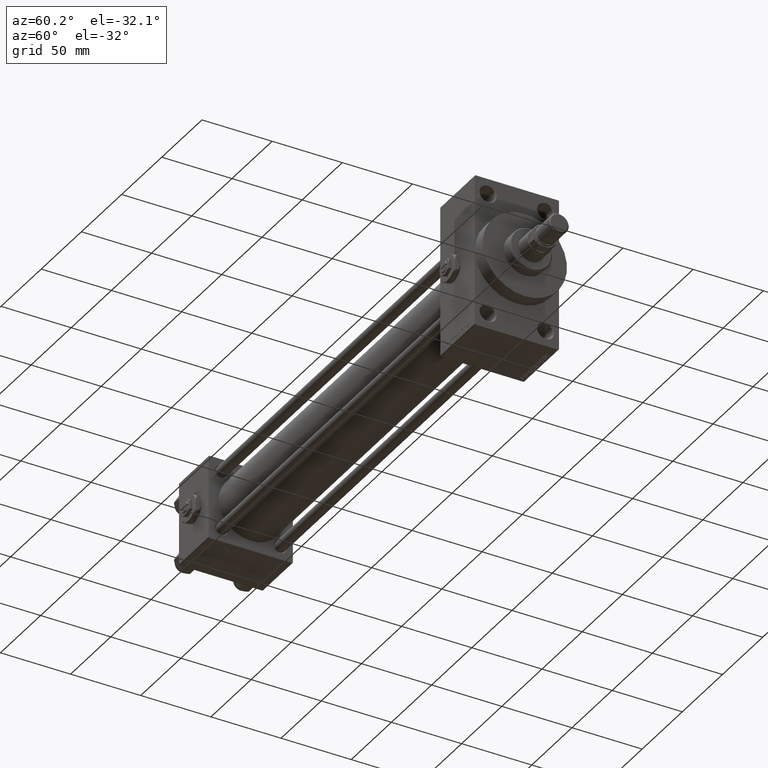
[diagram: clean part render]
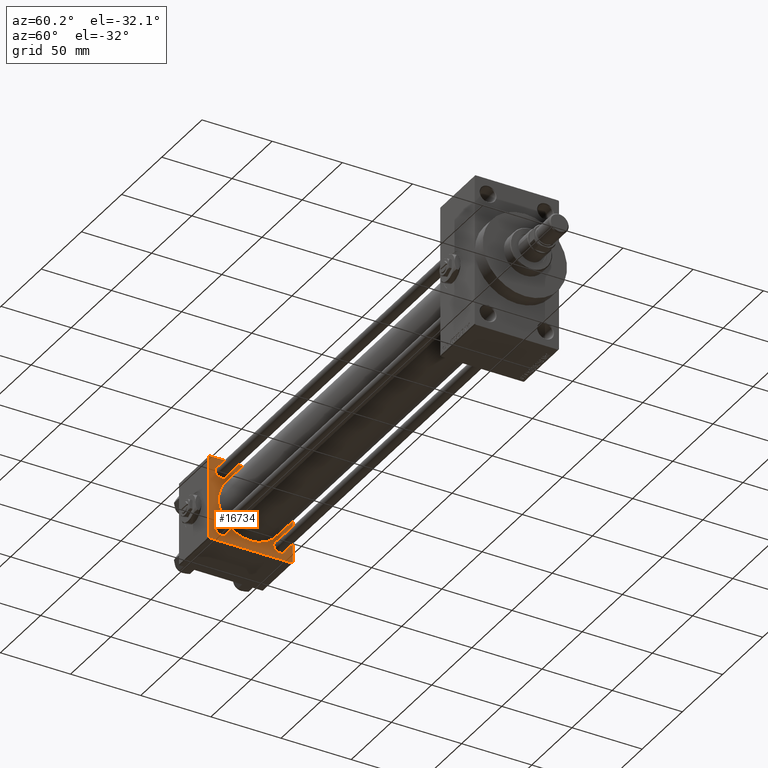
[diagram: same view with one face highlighted and labeled with its STEP entity id]
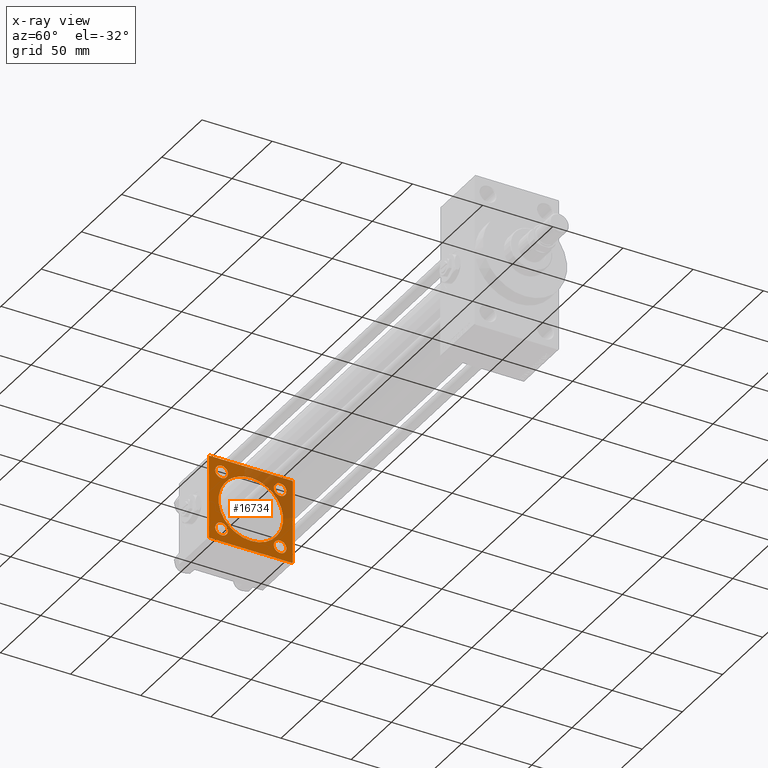
[diagram: x-ray of the same camera — body ghosted, the highlighted face saturated]
A machine part, auxiliary view. The second image highlights one B-rep face of the part: STEP entity #16734.
The next image is the same camera in x-ray: the body ghosted, the highlighted face saturated — about 26% of this face is hidden behind the body in this view.
In plain terms, the highlighted planar face has unit normal (-1, 0, 0).
Its self-contained STEP definition (entity closure, byte-faithful):
#607 = CARTESIAN_POINT ( 'NONE',  ( 36.99999999999997868, 2.146024240737016609E-16, -23.00000000000000000 ) ) ;
#1225 = FACE_BOUND ( 'NONE', #45426, .T. ) ;
#1249 = VERTEX_POINT ( 'NONE', #41199 ) ;
#1267 = EDGE_LOOP ( 'NONE', ( #43035, #4482, #2247, #13453, #36091, #26808, #32309, #36376 ) ) ;
#1467 = FACE_OUTER_BOUND ( 'NONE', #1267, .T. ) ;
#1585 = DIRECTION ( 'NONE',  ( -1.000000000000000000, 0.000000000000000000, -0.000000000000000000 ) ) ;
#2247 = ORIENTED_EDGE ( 'NONE', *, *, #11931, .F. ) ;
#2260 = CIRCLE ( 'NONE', #16233, 23.00000000000000000 ) ;
#2989 = DIRECTION ( 'NONE',  ( -1.000000000000000000, 0.000000000000000000, -0.000000000000000000 ) ) ;
#3140 = EDGE_CURVE ( 'NONE', #36217, #47642, #27179, .T. ) ;
#3520 = CARTESIAN_POINT ( 'NONE',  ( 37.00000000000000000, -29.50000000000001066, -30.00000000000000711 ) ) ;
#3573 = CARTESIAN_POINT ( 'NONE',  ( 37.00000000000000000, -20.84999999999999076, 20.85000000000000497 ) ) ;
#4010 = CIRCLE ( 'NONE', #25346, 4.499999999999948486 ) ;
#4333 = EDGE_LOOP ( 'NONE', ( #14409, #40521 ) ) ;
#4482 = ORIENTED_EDGE ( 'NONE', *, *, #32654, .T. ) ;
#4953 = EDGE_LOOP ( 'NONE', ( #9071, #11955 ) ) ;
#5005 = DIRECTION ( 'NONE',  ( 0.000000000000000000, 0.000000000000000000, 1.000000000000000000 ) ) ;
#6081 = CARTESIAN_POINT ( 'NONE',  ( 37.00000000000000000, 0.000000000000000000, 0.000000000000000000 ) ) ;
#6178 = CARTESIAN_POINT ( 'NONE',  ( 37.00000000000000000, -30.00000000000000000, 29.99999999999999289 ) ) ;
#6202 = CARTESIAN_POINT ( 'NONE',  ( 37.00000000000000000, -30.00000000000000000, 29.49999999999999289 ) ) ;
#6886 = EDGE_CURVE ( 'NONE', #22902, #31492, #12116, .T. ) ;
#7171 = CARTESIAN_POINT ( 'NONE',  ( 37.00000000000000000, -29.49999999999998579, 29.99999999999999289 ) ) ;
#7454 = VERTEX_POINT ( 'NONE', #47670 ) ;
#7606 = CARTESIAN_POINT ( 'NONE',  ( 36.99999999999997868, -2.602085213965210642E-15, 0.000000000000000000 ) ) ;
#7639 = ORIENTED_EDGE ( 'NONE', *, *, #43382, .T. ) ;
#8227 = VECTOR ( 'NONE', #43338, 1000.000000000000000 ) ;
#8462 = AXIS2_PLACEMENT_3D ( 'NONE', #45050, #25286, #33498 ) ;
#8591 = DIRECTION ( 'NONE',  ( 0.000000000000000000, 0.000000000000000000, -1.000000000000000000 ) ) ;
#8815 = VERTEX_POINT ( 'NONE', #35500 ) ;
#9068 = DIRECTION ( 'NONE',  ( -1.000000000000000000, 0.000000000000000000, -0.000000000000000000 ) ) ;
#9071 = ORIENTED_EDGE ( 'NONE', *, *, #32834, .T. ) ;
#9125 = CARTESIAN_POINT ( 'NONE',  ( 37.00000000000000000, -29.50000000000000000, -30.00000000000000711 ) ) ;
#9202 = FACE_BOUND ( 'NONE', #10003, .T. ) ;
#9605 = VERTEX_POINT ( 'NONE', #607 ) ;
#9650 = CIRCLE ( 'NONE', #18671, 4.499999999999948486 ) ;
#9677 = VERTEX_POINT ( 'NONE', #45292 ) ;
#9822 = CARTESIAN_POINT ( 'NONE',  ( 37.00000000000000000, 20.84999999999999787, 25.34999999999994813 ) ) ;
#10003 = EDGE_LOOP ( 'NONE', ( #27686, #19474 ) ) ;
#10168 = LINE ( 'NONE', #37893, #24016 ) ;
#10897 = EDGE_CURVE ( 'NONE', #36037, #7454, #38553, .T. ) ;
#11074 = DIRECTION ( 'NONE',  ( 0.000000000000000000, -0.7071067811865474617, 0.7071067811865474617 ) ) ;
#11931 = EDGE_CURVE ( 'NONE', #36037, #8815, #12439, .T. ) ;
#11955 = ORIENTED_EDGE ( 'NONE', *, *, #27510, .T. ) ;
#12116 = CIRCLE ( 'NONE', #20338, 4.499999999999948486 ) ;
#12196 = DIRECTION ( 'NONE',  ( 0.000000000000000000, 0.000000000000000000, -1.000000000000000000 ) ) ;
#12207 = DIRECTION ( 'NONE',  ( -1.000000000000000000, 0.000000000000000000, -0.000000000000000000 ) ) ;
#12236 = EDGE_CURVE ( 'NONE', #1249, #47642, #12887, .T. ) ;
#12259 = ORIENTED_EDGE ( 'NONE', *, *, #29698, .T. ) ;
#12439 = LINE ( 'NONE', #43777, #20483 ) ;
#12469 = CARTESIAN_POINT ( 'NONE',  ( 37.00000000000000000, -20.84999999999999076, 20.85000000000000497 ) ) ;
#12887 = LINE ( 'NONE', #26671, #8227 ) ;
#13132 = CIRCLE ( 'NONE', #44340, 4.499999999999948486 ) ;
#13453 = ORIENTED_EDGE ( 'NONE', *, *, #10897, .T. ) ;
#13648 = LINE ( 'NONE', #6178, #49721 ) ;
#13723 = VERTEX_POINT ( 'NONE', #23459 ) ;
#14409 = ORIENTED_EDGE ( 'NONE', *, *, #38820, .T. ) ;
#15030 = DIRECTION ( 'NONE',  ( -1.000000000000000000, 0.000000000000000000, -0.000000000000000000 ) ) ;
#15466 = CARTESIAN_POINT ( 'NONE',  ( 37.00000000000000000, -20.84999999999999076, 25.34999999999995168 ) ) ;
#16113 = EDGE_CURVE ( 'NONE', #38485, #40507, #25750, .T. ) ;
#16233 = AXIS2_PLACEMENT_3D ( 'NONE', #7606, #30993, #38692 ) ;
#16734 = ADVANCED_FACE ( 'NONE', ( #21520, #44134, #16918, #9202, #1225, #1467 ), #48993, .F. ) ;
#16918 = FACE_BOUND ( 'NONE', #28516, .T. ) ;
#16960 = CARTESIAN_POINT ( 'NONE',  ( 37.00000000000000000, 20.84999999999999787, -16.35000000000005116 ) ) ;
#17032 = DIRECTION ( 'NONE',  ( 0.000000000000000000, 0.000000000000000000, 1.000000000000000000 ) ) ;
#17733 = VECTOR ( 'NONE', #46434, 1000.000000000000114 ) ;
#17801 = AXIS2_PLACEMENT_3D ( 'NONE', #42795, #12207, #43554 ) ;
#17950 = VERTEX_POINT ( 'NONE', #36442 ) ;
#18671 = AXIS2_PLACEMENT_3D ( 'NONE', #12469, #48173, #5005 ) ;
#19009 = CIRCLE ( 'NONE', #25577, 4.499999999999948486 ) ;
#19012 = CARTESIAN_POINT ( 'NONE',  ( 37.00000000000000000, -30.00000000000000000, -29.50000000000001776 ) ) ;
#19474 = ORIENTED_EDGE ( 'NONE', *, *, #6886, .T. ) ;
#19789 = EDGE_CURVE ( 'NONE', #47133, #17950, #19009, .T. ) ;
#20202 = DIRECTION ( 'NONE',  ( -0.000000000000000000, 0.7071067811865574537, 0.7071067811865376918 ) ) ;
#20338 = AXIS2_PLACEMENT_3D ( 'NONE', #37298, #9068, #48604 ) ;
#20483 = VECTOR ( 'NONE', #8591, 1000.000000000000000 ) ;
#21520 = FACE_BOUND ( 'NONE', #4953, .T. ) ;
#21893 = DIRECTION ( 'NONE',  ( -0.000000000000000000, -0.7071067811865474617, -0.7071067811865474617 ) ) ;
#22082 = VECTOR ( 'NONE', #20202, 999.9999999999998863 ) ;
#22758 = DIRECTION ( 'NONE',  ( -1.000000000000000000, 0.000000000000000000, -0.000000000000000000 ) ) ;
#22902 = VERTEX_POINT ( 'NONE', #9822 ) ;
#23269 = CARTESIAN_POINT ( 'NONE',  ( 37.00000000000000000, 20.84999999999999787, 20.85000000000000142 ) ) ;
#23459 = CARTESIAN_POINT ( 'NONE',  ( 37.00000000000000000, -20.84999999999999076, -25.34999999999995168 ) ) ;
#23515 = CIRCLE ( 'NONE', #35044, 4.499999999999948486 ) ;
#24016 = VECTOR ( 'NONE', #36886, 1000.000000000000000 ) ;
#25286 = DIRECTION ( 'NONE',  ( 1.000000000000000000, -0.000000000000000000, 0.000000000000000000 ) ) ;
#25346 = AXIS2_PLACEMENT_3D ( 'NONE', #38654, #15030, #38136 ) ;
#25388 = VECTOR ( 'NONE', #11074, 1000.000000000000114 ) ;
#25577 = AXIS2_PLACEMENT_3D ( 'NONE', #48608, #1585, #17032 ) ;
#25750 = LINE ( 'NONE', #6202, #36935 ) ;
#26389 = CARTESIAN_POINT ( 'NONE',  ( 37.00000000000000000, 20.84999999999999787, 16.35000000000005116 ) ) ;
#26597 = EDGE_CURVE ( 'NONE', #40507, #36217, #13648, .T. ) ;
#26671 = CARTESIAN_POINT ( 'NONE',  ( 37.00000000000000000, 29.99999999999999289, -30.00000000000000000 ) ) ;
#26808 = ORIENTED_EDGE ( 'NONE', *, *, #16113, .T. ) ;
#26971 = DIRECTION ( 'NONE',  ( -1.000000000000000000, 0.000000000000000000, -0.000000000000000000 ) ) ;
#27179 = LINE ( 'NONE', #3520, #17733 ) ;
#27510 = EDGE_CURVE ( 'NONE', #9677, #13723, #35836, .T. ) ;
#27583 = EDGE_CURVE ( 'NONE', #31492, #22902, #23515, .T. ) ;
#27686 = ORIENTED_EDGE ( 'NONE', *, *, #27583, .T. ) ;
#28516 = EDGE_LOOP ( 'NONE', ( #7639, #12259 ) ) ;
#29303 = CARTESIAN_POINT ( 'NONE',  ( 37.00000000000000000, 29.99999999999999289, 29.50000000000000000 ) ) ;
#29509 = ORIENTED_EDGE ( 'NONE', *, *, #49565, .F. ) ;
#29530 = EDGE_CURVE ( 'NONE', #9605, #50192, #2260, .T. ) ;
#29698 = EDGE_CURVE ( 'NONE', #37413, #31173, #9650, .T. ) ;
#30993 = DIRECTION ( 'NONE',  ( 1.000000000000000000, -0.000000000000000000, 0.000000000000000000 ) ) ;
#31113 = CARTESIAN_POINT ( 'NONE',  ( 37.00000000000000000, 29.49999999999999289, 30.00000000000000000 ) ) ;
#31173 = VERTEX_POINT ( 'NONE', #34666 ) ;
#31492 = VERTEX_POINT ( 'NONE', #26389 ) ;
#31553 = CARTESIAN_POINT ( 'NONE',  ( 37.00000000000000000, -30.00000000000000000, 29.49999999999999289 ) ) ;
#32309 = ORIENTED_EDGE ( 'NONE', *, *, #26597, .T. ) ;
#32540 = LINE ( 'NONE', #48191, #22082 ) ;
#32654 = EDGE_CURVE ( 'NONE', #1249, #8815, #32540, .T. ) ;
#32832 = DIRECTION ( 'NONE',  ( -1.000000000000000000, 0.000000000000000000, -0.000000000000000000 ) ) ;
#32834 = EDGE_CURVE ( 'NONE', #13723, #9677, #4010, .T. ) ;
#33498 = DIRECTION ( 'NONE',  ( 0.000000000000000000, 0.000000000000000000, 1.000000000000000000 ) ) ;
#34666 = CARTESIAN_POINT ( 'NONE',  ( 37.00000000000000000, -20.84999999999999076, 16.35000000000005471 ) ) ;
#35044 = AXIS2_PLACEMENT_3D ( 'NONE', #23269, #22758, #38421 ) ;
#35116 = DIRECTION ( 'NONE',  ( 0.000000000000000000, 0.000000000000000000, 1.000000000000000000 ) ) ;
#35500 = CARTESIAN_POINT ( 'NONE',  ( 37.00000000000000000, 29.99999999999999289, -29.50000000000000000 ) ) ;
#35836 = CIRCLE ( 'NONE', #17801, 4.499999999999948486 ) ;
#36037 = VERTEX_POINT ( 'NONE', #29303 ) ;
#36091 = ORIENTED_EDGE ( 'NONE', *, *, #44708, .T. ) ;
#36217 = VERTEX_POINT ( 'NONE', #19012 ) ;
#36376 = ORIENTED_EDGE ( 'NONE', *, *, #3140, .T. ) ;
#36442 = CARTESIAN_POINT ( 'NONE',  ( 37.00000000000000000, 20.84999999999999787, -25.34999999999994813 ) ) ;
#36886 = DIRECTION ( 'NONE',  ( 0.000000000000000000, -1.000000000000000000, -1.156482317317871725E-16 ) ) ;
#36935 = VECTOR ( 'NONE', #21893, 1000.000000000000114 ) ;
#37298 = CARTESIAN_POINT ( 'NONE',  ( 37.00000000000000000, 20.84999999999999787, 20.85000000000000142 ) ) ;
#37413 = VERTEX_POINT ( 'NONE', #15466 ) ;
#37731 = ORIENTED_EDGE ( 'NONE', *, *, #29530, .F. ) ;
#37893 = CARTESIAN_POINT ( 'NONE',  ( 37.00000000000000000, 29.99999999999999289, 30.00000000000000000 ) ) ;
#38136 = DIRECTION ( 'NONE',  ( 0.000000000000000000, 0.000000000000000000, 1.000000000000000000 ) ) ;
#38421 = DIRECTION ( 'NONE',  ( 0.000000000000000000, 0.000000000000000000, 1.000000000000000000 ) ) ;
#38485 = VERTEX_POINT ( 'NONE', #7171 ) ;
#38553 = LINE ( 'NONE', #31113, #25388 ) ;
#38654 = CARTESIAN_POINT ( 'NONE',  ( 37.00000000000000000, -20.84999999999999076, -20.85000000000000497 ) ) ;
#38692 = DIRECTION ( 'NONE',  ( 0.000000000000000000, 0.000000000000000000, 1.000000000000000000 ) ) ;
#38820 = EDGE_CURVE ( 'NONE', #17950, #47133, #13132, .T. ) ;
#40507 = VERTEX_POINT ( 'NONE', #31553 ) ;
#40521 = ORIENTED_EDGE ( 'NONE', *, *, #19789, .T. ) ;
#41175 = CIRCLE ( 'NONE', #46939, 4.499999999999948486 ) ;
#41199 = CARTESIAN_POINT ( 'NONE',  ( 37.00000000000000000, 29.49999999999997868, -30.00000000000000000 ) ) ;
#41291 = DIRECTION ( 'NONE',  ( -0.000000000000000000, 0.000000000000000000, 1.000000000000000000 ) ) ;
#42795 = CARTESIAN_POINT ( 'NONE',  ( 37.00000000000000000, -20.84999999999999076, -20.85000000000000497 ) ) ;
#43035 = ORIENTED_EDGE ( 'NONE', *, *, #12236, .F. ) ;
#43338 = DIRECTION ( 'NONE',  ( 0.000000000000000000, -1.000000000000000000, -1.156482317317871725E-16 ) ) ;
#43382 = EDGE_CURVE ( 'NONE', #31173, #37413, #41175, .T. ) ;
#43554 = DIRECTION ( 'NONE',  ( 0.000000000000000000, 0.000000000000000000, 1.000000000000000000 ) ) ;
#43777 = CARTESIAN_POINT ( 'NONE',  ( 37.00000000000000000, 29.99999999999999289, 30.00000000000000000 ) ) ;
#44134 = FACE_BOUND ( 'NONE', #4333, .T. ) ;
#44340 = AXIS2_PLACEMENT_3D ( 'NONE', #46159, #2989, #35116 ) ;
#44708 = EDGE_CURVE ( 'NONE', #7454, #38485, #10168, .T. ) ;
#45050 = CARTESIAN_POINT ( 'NONE',  ( 36.99999999999997868, -2.602085213965210642E-15, 0.000000000000000000 ) ) ;
#45292 = CARTESIAN_POINT ( 'NONE',  ( 37.00000000000000000, -20.84999999999999076, -16.35000000000005471 ) ) ;
#45426 = EDGE_LOOP ( 'NONE', ( #29509, #37731 ) ) ;
#46142 = CARTESIAN_POINT ( 'NONE',  ( 36.99999999999997868, -2.602085213965210642E-15, 23.00000000000000000 ) ) ;
#46159 = CARTESIAN_POINT ( 'NONE',  ( 37.00000000000000000, 20.84999999999999787, -20.85000000000000142 ) ) ;
#46434 = DIRECTION ( 'NONE',  ( 0.000000000000000000, 0.7071067811865474617, -0.7071067811865474617 ) ) ;
#46939 = AXIS2_PLACEMENT_3D ( 'NONE', #3573, #26971, #50844 ) ;
#47133 = VERTEX_POINT ( 'NONE', #16960 ) ;
#47642 = VERTEX_POINT ( 'NONE', #9125 ) ;
#47670 = CARTESIAN_POINT ( 'NONE',  ( 37.00000000000000000, 29.49999999999999289, 30.00000000000000000 ) ) ;
#48173 = DIRECTION ( 'NONE',  ( -1.000000000000000000, 0.000000000000000000, -0.000000000000000000 ) ) ;
#48191 = CARTESIAN_POINT ( 'NONE',  ( 37.00000000000000000, 29.99999999999999289, -29.50000000000000000 ) ) ;
#48484 = AXIS2_PLACEMENT_3D ( 'NONE', #6081, #32832, #41291 ) ;
#48604 = DIRECTION ( 'NONE',  ( 0.000000000000000000, 0.000000000000000000, 1.000000000000000000 ) ) ;
#48608 = CARTESIAN_POINT ( 'NONE',  ( 37.00000000000000000, 20.84999999999999787, -20.85000000000000142 ) ) ;
#48644 = CIRCLE ( 'NONE', #8462, 23.00000000000000000 ) ;
#48993 = PLANE ( 'NONE',  #48484 ) ;
#49565 = EDGE_CURVE ( 'NONE', #50192, #9605, #48644, .T. ) ;
#49721 = VECTOR ( 'NONE', #12196, 1000.000000000000000 ) ;
#50192 = VERTEX_POINT ( 'NONE', #46142 ) ;
#50844 = DIRECTION ( 'NONE',  ( 0.000000000000000000, 0.000000000000000000, 1.000000000000000000 ) ) ;